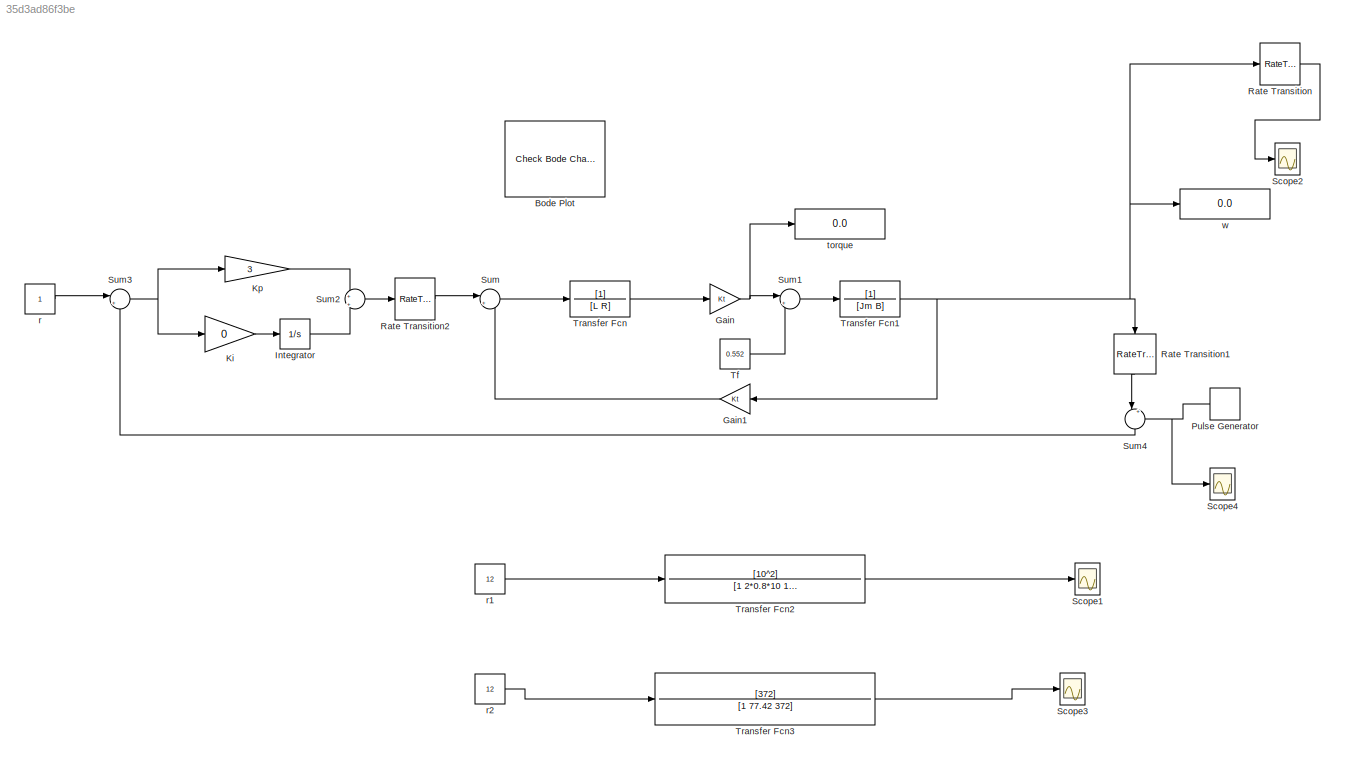
MODEL slx_35d3ad86f3be
KIND model
CONFIG AbsTol = auto
CONFIG FixedStep = 0.0001
CONFIG MaxStep = auto
CONFIG MinStep = auto
CONFIG RelTol = 1e-3
CONFIG SampleTimeConstraint = Unconstrained
CONFIG Solver = FixedStepAuto
CONFIG SolverMode = Auto
CONFIG SolverName = FixedStepAuto
CONFIG StartTime = 0.0
CONFIG StopTime = inf
BLOCK [Reference] Bode Plot  REF=slctrlblks/Model Verification/Check Bode 
Characteristics
  InstantiateOnLoad = on
  Ports = []
  SourceBlock = slctrlblks/Model Verification/Check Bode \nCharacteristics
  SourceType = Checks_Bode
BLOCK [Gain] Gain
  Gain = Kt
  OutDataTypeStr = Inherit: Inherit via internal rule
  ParamDataTypeStr = Inherit: Inherit via internal rule
  SaturateOnIntegerOverflow = off
BLOCK [Gain] Gain1
  Gain = Kt
  OutDataTypeStr = Inherit: Inherit via internal rule
  ParamDataTypeStr = Inherit: Inherit via internal rule
  SaturateOnIntegerOverflow = off
BLOCK [Integrator] Integrator
  Ports = [1, 1]
BLOCK [Gain] Ki
  Gain = 0
  OutDataTypeStr = Inherit: Inherit via internal rule
  ParamDataTypeStr = Inherit: Inherit via internal rule
  SaturateOnIntegerOverflow = off
BLOCK [Gain] Kp
  Gain = 3
  OutDataTypeStr = Inherit: Inherit via internal rule
  ParamDataTypeStr = Inherit: Inherit via internal rule
  SaturateOnIntegerOverflow = off
BLOCK [DiscretePulseGenerator] Pulse Generator
  Amplitude = 0.1
  Period = 0.001
  Ports = [0, 1]
  PulseType = Time based
  PulseWidth = 50
BLOCK [RateTransition] Rate Transition
  Deterministic = off
  OutPortSampleTime = 0.01
  OutPortSampleTimeOpt = Inherit
BLOCK [RateTransition] Rate Transition1
  Deterministic = off
  OutPortSampleTime = 0.001
BLOCK [RateTransition] Rate Transition2
  Deterministic = off
  OutPortSampleTime = 0.0001
BLOCK [Scope] Scope1
  Ports = [1]
  ScopeSpecificationString = Simulink.scopes.TimeScopeBlockCfg('CurrentConfiguration', extmgr.ConfigurationSet(extmgr.Configuration('Core','General UI',true),extmgr.Configuration('Core','Source UI',true),extmgr.Configuration('Sources','WiredSimulink',true,'DataLoggingVariableName','ScopeData1'),extmgr.Configuration('Visuals','Time Domain',true,'SerializedDisplays',{struct('MinYLimReal','10.72152','MaxYLimReal','11.8049','YLab...<+1445ch>
BLOCK [Scope] Scope2
  Ports = [1]
  ScopeSpecificationString = Simulink.scopes.TimeScopeBlockCfg('CurrentConfiguration', extmgr.ConfigurationSet(extmgr.Configuration('Core','General UI',true),extmgr.Configuration('Core','Source UI',true),extmgr.Configuration('Sources','WiredSimulink',true),extmgr.Configuration('Visuals','Time Domain',true,'SerializedDisplays',{struct('MinYLimReal','-0.04293','MaxYLimReal','0.38634','YLabelReal','','MinYLimMag','0.00000','MaxY...<+1434ch>
BLOCK [Scope] Scope3
  Ports = [1]
  ScopeSpecificationString = Simulink.scopes.TimeScopeBlockCfg('CurrentConfiguration', extmgr.ConfigurationSet(extmgr.Configuration('Core','General UI',true),extmgr.Configuration('Core','Source UI',true),extmgr.Configuration('Sources','WiredSimulink',true,'DataLoggingVariableName','ScopeData2'),extmgr.Configuration('Visuals','Time Domain',true,'SerializedDisplays',{struct('MinYLimReal','-1.5','MaxYLimReal','13.5','YLabelReal'...<+1423ch>
BLOCK [Scope] Scope4
  Ports = [1]
  ScopeSpecificationString = Simulink.scopes.TimeScopeBlockCfg('CurrentConfiguration', extmgr.ConfigurationSet(extmgr.Configuration('Core','General UI',true),extmgr.Configuration('Core','Source UI',true),extmgr.Configuration('Sources','WiredSimulink',true,'DataLoggingVariableName','ScopeData3'),extmgr.Configuration('Visuals','Time Domain',true,'SerializedDisplays',{struct('MinYLimReal','-0.0625','MaxYLimReal','0.5625','YLabel...<+1439ch>
BLOCK [Sum] Sum
  IconShape = round
  InputSameDT = off
  Inputs = |+-
  OutDataTypeStr = Inherit: Inherit via internal rule
  Ports = [2, 1]
  SaturateOnIntegerOverflow = off
BLOCK [Sum] Sum1
  IconShape = round
  InputSameDT = off
  Inputs = |+-
  OutDataTypeStr = Inherit: Inherit via internal rule
  Ports = [2, 1]
  SaturateOnIntegerOverflow = off
BLOCK [Sum] Sum2
  IconShape = round
  InputSameDT = off
  Inputs = +|+
  OutDataTypeStr = Inherit: Inherit via internal rule
  Ports = [2, 1]
  SaturateOnIntegerOverflow = off
BLOCK [Sum] Sum3
  IconShape = round
  InputSameDT = off
  Inputs = |+-
  OutDataTypeStr = Inherit: Inherit via internal rule
  Ports = [2, 1]
  SaturateOnIntegerOverflow = off
BLOCK [Sum] Sum4
  IconShape = round
  InputSameDT = off
  Inputs = |++
  OutDataTypeStr = Inherit: Inherit via internal rule
  Ports = [2, 1]
  SaturateOnIntegerOverflow = off
BLOCK [Constant] Tf
  Value = 0.552
BLOCK [TransferFcn] Transfer Fcn
  Denominator = [L R]
BLOCK [TransferFcn] Transfer Fcn1
  Denominator = [Jm B]
BLOCK [TransferFcn] Transfer Fcn2
  Denominator = [1 2*0.8*10 10^2]
  Numerator = [10^2]
BLOCK [TransferFcn] Transfer Fcn3
  Denominator = [1 77.42 372]
  Numerator = [372]
BLOCK [Constant] r
BLOCK [Constant] r1
  Value = 12
BLOCK [Constant] r2
  Value = 12
BLOCK [Display] torque
  Decimation = 1
  Ports = [1]
BLOCK [Display] w
  Decimation = 1
  Ports = [1]
LINE Gain1:1 -> Sum:2
NET Gain:1 -> Sum1:1, torque:1
LINE Integrator:1 -> Sum2:2
LINE Ki:1 -> Integrator:1
LINE Kp:1 -> Sum2:1
NET Pulse Generator:1 -> Scope4:1, Sum4:2
LINE Rate Transition1:1 -> Sum4:1
LINE Rate Transition2:1 -> Sum:1
LINE Rate Transition:1 -> Scope2:1
LINE Sum1:1 -> Transfer Fcn1:1
LINE Sum2:1 -> Rate Transition2:1
NET Sum3:1 -> Ki:1, Kp:1
LINE Sum4:1 -> Sum3:2
LINE Sum:1 -> Transfer Fcn:1
LINE Tf:1 -> Sum1:2
NET Transfer Fcn1:1 -> Gain1:1, Rate Transition1:1, Rate Transition:1, w:1
LINE Transfer Fcn2:1 -> Scope1:1
LINE Transfer Fcn3:1 -> Scope3:1
LINE Transfer Fcn:1 -> Gain:1
LINE r1:1 -> Transfer Fcn2:1
LINE r2:1 -> Transfer Fcn3:1
LINE r:1 -> Sum3:1
note: NET lines group one-source signal fan-out (src -> all destinations, sorted); 1:1 wires keep LINE
